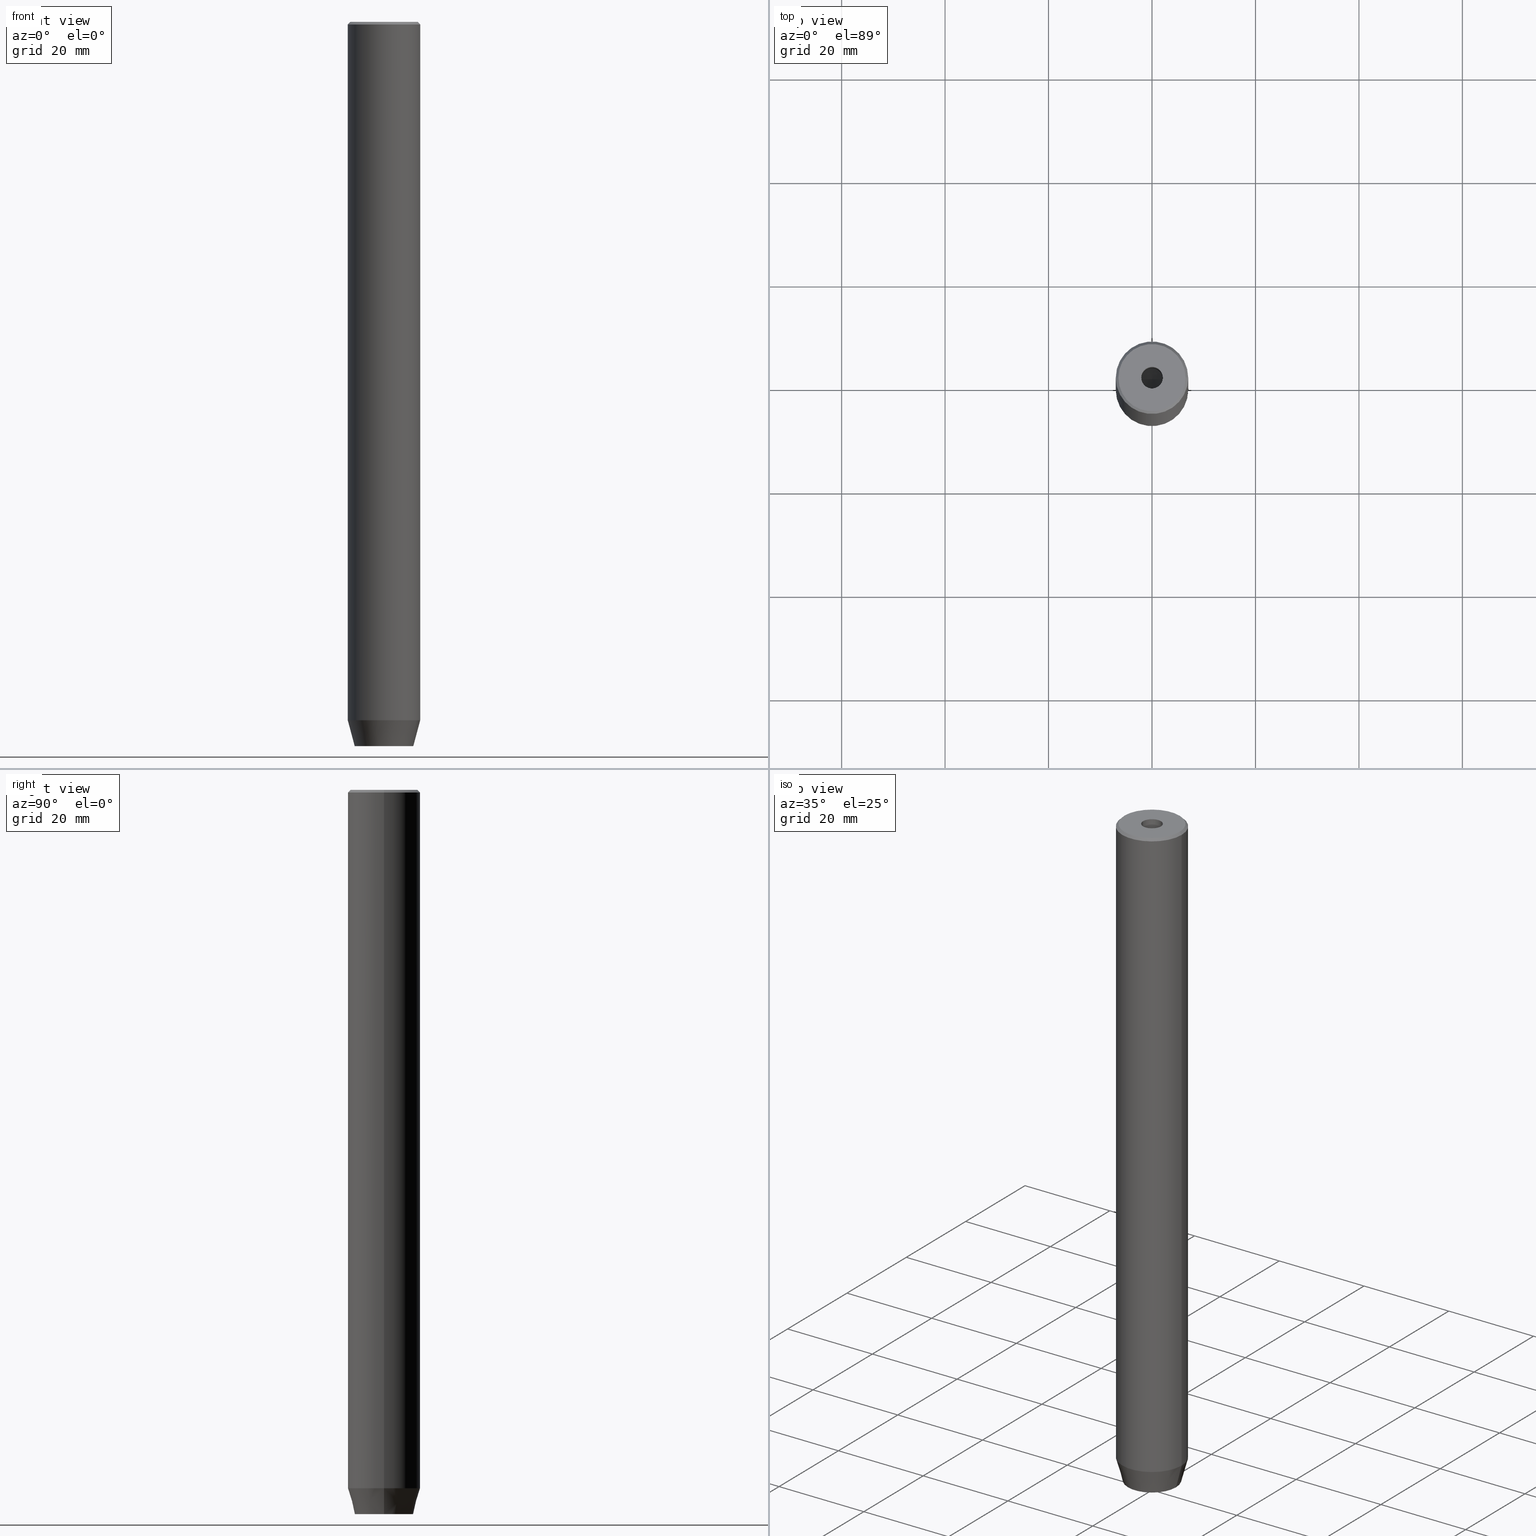
[diagram: canonical four-view strip — front | top / right | iso, engineering-drawing reading convention]
A machine part, canonical four-view strip (front | top / right | iso — engineering-drawing reading convention). The complete STEP part file that produces these views, byte-faithful:
ISO-10303-21;
HEADER;
FILE_DESCRIPTION (( 'STEP AP203' ),
    '1' );
FILE_NAME ('f5e4.STEP',
    '2024-01-02T20:41:37',
    ( '' ),
    ( '' ),
    'SwSTEP 2.0',
    'SolidWorks 2019',
    '' );
FILE_SCHEMA (( 'CONFIG_CONTROL_DESIGN' ));
ENDSEC;

DATA;
#1 = CONICAL_SURFACE ( 'NONE', #375, 6.500000000000005329, 0.7853981633974517207 ) ;
#2 = DIRECTION ( 'NONE',  ( -0.000000000000000000, -0.000000000000000000, 1.000000000000000000 ) ) ;
#3 = CARTESIAN_POINT ( 'NONE',  ( 0.000000000000000000, 0.000000000000000000, 0.000000000000000000 ) ) ;
#4 = ADVANCED_FACE ( 'NONE', ( #519, #208 ), #248, .T. ) ;
#5 = LINE ( 'NONE', #493, #250 ) ;
#6 = DIRECTION ( 'NONE',  ( 0.000000000000000000, 1.000000000000000000, 0.000000000000000000 ) ) ;
#7 = LINE ( 'NONE', #308, #79 ) ;
#8 = DIRECTION ( 'NONE',  ( 1.000000000000000000, 0.000000000000000000, 0.000000000000000000 ) ) ;
#9 = CARTESIAN_POINT ( 'NONE',  ( 0.000000000000000000, 5.660254037844382857, -140.0000000000000000 ) ) ;
#10 = DIRECTION ( 'NONE',  ( 1.000000000000000000, 0.000000000000000000, 0.000000000000000000 ) ) ;
#11 = EDGE_LOOP ( 'NONE', ( #58, #111, #281 ) ) ;
#12 = EDGE_CURVE ( 'NONE', #223, #296, #436, .T. ) ;
#13 = CARTESIAN_POINT ( 'NONE',  ( -6.500000000000005329, 0.000000000000000000, 0.000000000000000000 ) ) ;
#14 = APPROVAL_PERSON_ORGANIZATION ( #42, #221, #584 ) ;
#15 = DIRECTION ( 'NONE',  ( 0.5000000000000001110, 0.8660254037844385966, -0.000000000000000000 ) ) ;
#16 = DIRECTION ( 'NONE',  ( -1.000000000000000000, 0.000000000000000000, 0.000000000000000000 ) ) ;
#17 = CARTESIAN_POINT ( 'NONE',  ( 1.250000000000000222, 2.165063509461096825, -137.2000000000000171 ) ) ;
#18 = EDGE_LOOP ( 'NONE', ( #529, #195, #353, #64 ) ) ;
#19 = FACE_OUTER_BOUND ( 'NONE', #18, .T. ) ;
#20 = EDGE_CURVE ( 'NONE', #296, #315, #202, .T. ) ;
#21 = ORIENTED_EDGE ( 'NONE', *, *, #570, .T. ) ;
#22 = DIRECTION ( 'NONE',  ( -0.8660254037844385966, -0.5000000000000001110, 0.000000000000000000 ) ) ;
#23 = LINE ( 'NONE', #210, #479 ) ;
#24 = APPROVAL ( #166, 'NEUR�EN�' ) ;
#25 = CONICAL_SURFACE ( 'NONE', #69, 2.099999999999996980, 1.029744258676652535 ) ;
#26 = DIRECTION ( 'NONE',  ( 0.8660254037844385966, 0.4999999999999999445, 0.000000000000000000 ) ) ;
#27 = EDGE_CURVE ( 'NONE', #405, #237, #23, .T. ) ;
#28 = CARTESIAN_POINT ( 'NONE',  ( -2.500000000000000444, -1.443375672974064328, -140.0000000000000000 ) ) ;
#29 = CALENDAR_DATE ( 2024, 2, 1 ) ;
#30 = DIRECTION ( 'NONE',  ( -0.000000000000000000, -0.000000000000000000, 1.000000000000000000 ) ) ;
#31 = AXIS2_PLACEMENT_3D ( 'NONE', #302, #475, #397 ) ;
#32 = VECTOR ( 'NONE', #36, 1000.000000000000000 ) ;
#33 = CALENDAR_DATE ( 2024, 2, 1 ) ;
#34 = CARTESIAN_POINT ( 'NONE',  ( 7.000000000000000000, 0.000000000000000000, -0.4999999999999908962 ) ) ;
#35 = PERSON_AND_ORGANIZATION ( #513, #564 ) ;
#36 = DIRECTION ( 'NONE',  ( 0.8571673007021113344, 0.000000000000000000, 0.5150380749100558209 ) ) ;
#37 = EDGE_CURVE ( 'NONE', #312, #292, #553, .T. ) ;
#38 = EDGE_LOOP ( 'NONE', ( #21, #425, #372, #288 ) ) ;
#39 = CARTESIAN_POINT ( 'NONE',  ( 0.000000000000000000, 0.000000000000000000, -135.0000000000000000 ) ) ;
#40 = DIRECTION ( 'NONE',  ( -0.000000000000000000, -0.000000000000000000, 1.000000000000000000 ) ) ;
#41 = CYLINDRICAL_SURFACE ( 'NONE', #441, 7.000000000000000000 ) ;
#42 = PERSON_AND_ORGANIZATION ( #513, #564 ) ;
#43 = EDGE_CURVE ( 'NONE', #416, #220, #162, .T. ) ;
#44 = FACE_OUTER_BOUND ( 'NONE', #565, .T. ) ;
#45 = FACE_OUTER_BOUND ( 'NONE', #247, .T. ) ;
#46 = SECURITY_CLASSIFICATION ( '', '', #260 ) ;
#47 = DIRECTION ( 'NONE',  ( -0.000000000000000000, -0.000000000000000000, -1.000000000000000000 ) ) ;
#48 = AXIS2_PLACEMENT_3D ( 'NONE', #103, #16, #55 ) ;
#49 = CARTESIAN_POINT ( 'NONE',  ( 0.000000000000000000, 0.000000000000000000, -1.990051048614449116E-16 ) ) ;
#50 = VECTOR ( 'NONE', #52, 1000.000000000000000 ) ;
#51 = ORIENTED_EDGE ( 'NONE', *, *, #566, .T. ) ;
#52 = DIRECTION ( 'NONE',  ( 0.8660254037844385966, 0.5000000000000001110, 0.000000000000000000 ) ) ;
#53 = LINE ( 'NONE', #500, #159 ) ;
#54 = ADVANCED_FACE ( 'NONE', ( #332 ), #328, .F. ) ;
#55 = DIRECTION ( 'NONE',  ( 0.000000000000000000, 0.000000000000000000, 1.000000000000000000 ) ) ;
#56 = PLANE ( 'NONE',  #225 ) ;
#57 = CARTESIAN_POINT ( 'NONE',  ( 2.099999999999996980, 0.000000000000000000, -15.00000000000000000 ) ) ;
#58 = ORIENTED_EDGE ( 'NONE', *, *, #83, .F. ) ;
#59 = CIRCLE ( 'NONE', #369, 7.000000000000000000 ) ;
#60 = ORIENTED_EDGE ( 'NONE', *, *, #414, .T. ) ;
#61 = CARTESIAN_POINT ( 'NONE',  ( -5.660254037844382857, 7.752169791919238770E-16, -140.0000000000000000 ) ) ;
#62 = ADVANCED_FACE ( 'NONE', ( #283 ), #56, .F. ) ;
#63 = ORIENTED_EDGE ( 'NONE', *, *, #20, .F. ) ;
#64 = ORIENTED_EDGE ( 'NONE', *, *, #266, .T. ) ;
#65 = PLANE ( 'NONE',  #544 ) ;
#66 = VECTOR ( 'NONE', #427, 1000.000000000000114 ) ;
#67 = AXIS2_PLACEMENT_3D ( 'NONE', #226, #580, #449 ) ;
#68 = CC_DESIGN_APPROVAL ( #221, ( #46 ) ) ;
#69 = AXIS2_PLACEMENT_3D ( 'NONE', #390, #30, #347 ) ;
#70 =( LENGTH_UNIT ( ) NAMED_UNIT ( * ) SI_UNIT ( .MILLI., .METRE. ) );
#71 = AXIS2_PLACEMENT_3D ( 'NONE', #578, #178, #272 ) ;
#72 = ORIENTED_EDGE ( 'NONE', *, *, #504, .T. ) ;
#73 = LINE ( 'NONE', #478, #32 ) ;
#74 = VERTEX_POINT ( 'NONE', #28 ) ;
#75 = EDGE_CURVE ( 'NONE', #292, #264, #474, .T. ) ;
#76 = APPLICATION_PROTOCOL_DEFINITION ( 'international standard', 'config_control_design', 1994, #122 ) ;
#77 = AXIS2_PLACEMENT_3D ( 'NONE', #39, #238, #10 ) ;
#78 = DIRECTION ( 'NONE',  ( 0.8660254037844387076, -0.4999999999999998890, 0.000000000000000000 ) ) ;
#79 = VECTOR ( 'NONE', #47, 1000.000000000000000 ) ;
#80 = CC_DESIGN_SECURITY_CLASSIFICATION ( #46, ( #355 ) ) ;
#81 = EDGE_LOOP ( 'NONE', ( #256, #437, #233 ) ) ;
#82 = PERSON_AND_ORGANIZATION_ROLE ( 'design_supplier' ) ;
#83 = EDGE_CURVE ( 'NONE', #212, #416, #5, .T. ) ;
#84 = CARTESIAN_POINT ( 'NONE',  ( 1.249999999999999778, -2.165063509461096380, -137.2000000000000171 ) ) ;
#85 = VECTOR ( 'NONE', #408, 1000.000000000000114 ) ;
#86 = CARTESIAN_POINT ( 'NONE',  ( 0.000000000000000000, 0.000000000000000000, -15.00000000000000000 ) ) ;
#87 = ORIENTED_EDGE ( 'NONE', *, *, #139, .F. ) ;
#88 = CC_DESIGN_DATE_AND_TIME_ASSIGNMENT ( #374, #277, ( #46 ) ) ;
#89 = DIRECTION ( 'NONE',  ( 0.5000000000000000000, -0.8660254037844387076, 0.000000000000000000 ) ) ;
#90 = AXIS2_PLACEMENT_3D ( 'NONE', #9, #379, #382 ) ;
#91 = DIRECTION ( 'NONE',  ( 1.000000000000000000, 0.000000000000000000, 0.000000000000000000 ) ) ;
#92 = AXIS2_PLACEMENT_3D ( 'NONE', #362, #313, #583 ) ;
#93 = ORIENTED_EDGE ( 'NONE', *, *, #155, .F. ) ;
#94 = EDGE_CURVE ( 'NONE', #396, #74, #7, .T. ) ;
#95 = LINE ( 'NONE', #276, #481 ) ;
#96 = ORIENTED_EDGE ( 'NONE', *, *, #558, .T. ) ;
#97 = DIRECTION ( 'NONE',  ( -1.000000000000000000, 0.000000000000000000, 0.000000000000000000 ) ) ;
#98 = EDGE_LOOP ( 'NONE', ( #232, #411, #135, #365 ) ) ;
#99 = ORIENTED_EDGE ( 'NONE', *, *, #155, .T. ) ;
#100 = CYLINDRICAL_SURFACE ( 'NONE', #307, 2.099999999999997868 ) ;
#101 = DIRECTION ( 'NONE',  ( -0.000000000000000000, -0.000000000000000000, 1.000000000000000000 ) ) ;
#102 = ORIENTED_EDGE ( 'NONE', *, *, #354, .F. ) ;
#103 = CARTESIAN_POINT ( 'NONE',  ( -2.500000000000000444, 0.000000000000000000, -137.2000000000000171 ) ) ;
#104 = LINE ( 'NONE', #450, #85 ) ;
#105 = EDGE_CURVE ( 'NONE', #363, #158, #541, .T. ) ;
#106 = DIRECTION ( 'NONE',  ( -0.5000000000000001110, 0.8660254037844385966, 0.000000000000000000 ) ) ;
#107 = ORIENTED_EDGE ( 'NONE', *, *, #229, .T. ) ;
#108 = ADVANCED_FACE ( 'NONE', ( #370 ), #268, .T. ) ;
#109 = CARTESIAN_POINT ( 'NONE',  ( 0.000000000000000000, 0.000000000000000000, -135.0000000000000000 ) ) ;
#110 = AXIS2_PLACEMENT_3D ( 'NONE', #360, #227, #78 ) ;
#111 = ORIENTED_EDGE ( 'NONE', *, *, #338, .T. ) ;
#112 = LINE ( 'NONE', #147, #168 ) ;
#113 = CARTESIAN_POINT ( 'NONE',  ( 2.500000000000000000, -1.443375672974064106, -137.2000000000000171 ) ) ;
#114 = DIRECTION ( 'NONE',  ( -0.000000000000000000, -0.000000000000000000, 1.000000000000000000 ) ) ;
#115 = LOCAL_TIME ( 21, 41, 37.00000000000000000, #216 ) ;
#116 = DIRECTION ( 'NONE',  ( -0.000000000000000000, -0.000000000000000000, 1.000000000000000000 ) ) ;
#117 = EDGE_CURVE ( 'NONE', #495, #396, #95, .T. ) ;
#118 = CARTESIAN_POINT ( 'NONE',  ( 1.249999999999999778, -2.165063509461096380, -140.0000000000000000 ) ) ;
#119 = ORIENTED_EDGE ( 'NONE', *, *, #257, .F. ) ;
#120 = MECHANICAL_CONTEXT ( 'NONE', #274, 'mechanical' ) ;
#121 = LINE ( 'NONE', #84, #487 ) ;
#122 = APPLICATION_CONTEXT ( 'configuration controlled 3d designs of mechanical parts and assemblies' ) ;
#123 = CARTESIAN_POINT ( 'NONE',  ( -2.500000000000000444, -1.443375672974064328, -137.2000000000000171 ) ) ;
#124 = AXIS2_PLACEMENT_3D ( 'NONE', #241, #463, #511 ) ;
#125 = EDGE_LOOP ( 'NONE', ( #399, #484, #228, #577 ) ) ;
#126 = ADVANCED_FACE ( 'NONE', ( #454 ), #498, .T. ) ;
#127 = PERSON_AND_ORGANIZATION ( #513, #564 ) ;
#128 = FACE_OUTER_BOUND ( 'NONE', #460, .T. ) ;
#129 = VECTOR ( 'NONE', #350, 1000.000000000000000 ) ;
#130 = CC_DESIGN_PERSON_AND_ORGANIZATION_ASSIGNMENT ( #35, #576, ( #46 ) ) ;
#131 = DIRECTION ( 'NONE',  ( 1.000000000000000000, 0.000000000000000000, 0.000000000000000000 ) ) ;
#132 = ORIENTED_EDGE ( 'NONE', *, *, #213, .F. ) ;
#133 = ORIENTED_EDGE ( 'NONE', *, *, #229, .F. ) ;
#134 = DIRECTION ( 'NONE',  ( -0.000000000000000000, -0.000000000000000000, 1.000000000000000000 ) ) ;
#135 = ORIENTED_EDGE ( 'NONE', *, *, #570, .F. ) ;
#136 = LINE ( 'NONE', #352, #169 ) ;
#137 = DATE_AND_TIME ( #192, #509 ) ;
#138 = FACE_OUTER_BOUND ( 'NONE', #259, .T. ) ;
#139 = EDGE_CURVE ( 'NONE', #190, #174, #398, .T. ) ;
#140 = DIRECTION ( 'NONE',  ( 0.2588190451025211836, 0.000000000000000000, 0.9659258262890680902 ) ) ;
#141 = EDGE_LOOP ( 'NONE', ( #383, #87 ) ) ;
#142 = CARTESIAN_POINT ( 'NONE',  ( 0.000000000000000000, 0.000000000000000000, 0.000000000000000000 ) ) ;
#143 = CARTESIAN_POINT ( 'NONE',  ( -2.500000000000000444, 0.000000000000000000, -140.0000000000000000 ) ) ;
#144 = PRODUCT ( 'f5e4', 'f5e4', '', ( #120 ) ) ;
#145 = VECTOR ( 'NONE', #184, 1000.000000000000000 ) ;
#146 = ADVANCED_FACE ( 'NONE', ( #537 ), #538, .F. ) ;
#147 = CARTESIAN_POINT ( 'NONE',  ( 1.250000000000000222, 2.165063509461096825, -140.0000000000000000 ) ) ;
#148 = FACE_BOUND ( 'NONE', #141, .T. ) ;
#149 = ADVANCED_BREP_SHAPE_REPRESENTATION ( 'f5e4', ( #530, #31 ), #326 ) ;
#150 = VECTOR ( 'NONE', #331, 1000.000000000000000 ) ;
#151 = CARTESIAN_POINT ( 'NONE',  ( 0.000000000000000000, 0.000000000000000000, 0.000000000000000000 ) ) ;
#152 = PLANE ( 'NONE',  #48 ) ;
#153 = DIRECTION ( 'NONE',  ( -0.000000000000000000, -0.000000000000000000, 1.000000000000000000 ) ) ;
#154 = CARTESIAN_POINT ( 'NONE',  ( 0.000000000000000000, 0.000000000000000000, 0.000000000000000000 ) ) ;
#155 = EDGE_CURVE ( 'NONE', #74, #447, #230, .T. ) ;
#156 = LINE ( 'NONE', #518, #339 ) ;
#157 = DIRECTION ( 'NONE',  ( 1.000000000000000000, 0.000000000000000000, 0.000000000000000000 ) ) ;
#158 = VERTEX_POINT ( 'NONE', #316 ) ;
#159 = VECTOR ( 'NONE', #6, 1000.000000000000000 ) ;
#160 = EDGE_CURVE ( 'NONE', #278, #363, #470, .T. ) ;
#161 = APPROVAL_STATUS ( 'not_yet_approved' ) ;
#162 = CIRCLE ( 'NONE', #189, 2.099999999999996980 ) ;
#163 = ORIENTED_EDGE ( 'NONE', *, *, #94, .T. ) ;
#164 = AXIS2_PLACEMENT_3D ( 'NONE', #154, #563, #157 ) ;
#165 = LINE ( 'NONE', #118, #244 ) ;
#166 = APPROVAL_STATUS ( 'not_yet_approved' ) ;
#167 = ORIENTED_EDGE ( 'NONE', *, *, #451, .F. ) ;
#168 = VECTOR ( 'NONE', #512, 1000.000000000000000 ) ;
#169 = VECTOR ( 'NONE', #528, 1000.000000000000000 ) ;
#170 = COORDINATED_UNIVERSAL_TIME_OFFSET ( 1, 0, .AHEAD. ) ;
#171 = ADVANCED_FACE ( 'NONE', ( #262 ), #100, .F. ) ;
#172 = ORIENTED_EDGE ( 'NONE', *, *, #242, .T. ) ;
#173 = APPROVAL_DATE_TIME ( #258, #24 ) ;
#174 = VERTEX_POINT ( 'NONE', #458 ) ;
#175 = CARTESIAN_POINT ( 'NONE',  ( 2.500000000000000000, 1.443375672974064328, -137.2000000000000171 ) ) ;
#176 = ORIENTED_EDGE ( 'NONE', *, *, #387, .T. ) ;
#177 = COORDINATED_UNIVERSAL_TIME_OFFSET ( 1, 0, .AHEAD. ) ;
#178 = DIRECTION ( 'NONE',  ( -0.000000000000000000, -0.000000000000000000, 1.000000000000000000 ) ) ;
#179 = APPROVAL_PERSON_ORGANIZATION ( #127, #480, #343 ) ;
#180 = EDGE_LOOP ( 'NONE', ( #582, #107, #403, #368 ) ) ;
#181 = DIRECTION ( 'NONE',  ( 1.000000000000000000, 0.000000000000000000, 0.000000000000000000 ) ) ;
#182 = PLANE ( 'NONE',  #110 ) ;
#183 = ORIENTED_EDGE ( 'NONE', *, *, #376, .F. ) ;
#184 = DIRECTION ( 'NONE',  ( 0.000000000000000000, 1.000000000000000000, 0.000000000000000000 ) ) ;
#185 = COORDINATED_UNIVERSAL_TIME_OFFSET ( 1, 0, .AHEAD. ) ;
#186 = ADVANCED_FACE ( 'NONE', ( #535 ), #473, .T. ) ;
#187 = EDGE_LOOP ( 'NONE', ( #172, #96, #322, #572, #231, #310 ) ) ;
#188 = DIRECTION ( 'NONE',  ( -0.000000000000000000, -0.000000000000000000, 1.000000000000000000 ) ) ;
#189 = AXIS2_PLACEMENT_3D ( 'NONE', #521, #114, #461 ) ;
#190 = VERTEX_POINT ( 'NONE', #286 ) ;
#191 = CARTESIAN_POINT ( 'NONE',  ( 0.000000000000000000, 0.000000000000000000, -140.0000000000000000 ) ) ;
#192 = CALENDAR_DATE ( 2024, 2, 1 ) ;
#193 = ORIENTED_EDGE ( 'NONE', *, *, #252, .F. ) ;
#194 = DIRECTION ( 'NONE',  ( 1.000000000000000000, 0.000000000000000000, 0.000000000000000000 ) ) ;
#195 = ORIENTED_EDGE ( 'NONE', *, *, #27, .F. ) ;
#196 = DIRECTION ( 'NONE',  ( -0.8571673007021113344, 1.049727191138617463E-16, 0.5150380749100558209 ) ) ;
#197 = CARTESIAN_POINT ( 'NONE',  ( -7.000000000000000000, 8.572527594031473190E-16, -135.0000000000000000 ) ) ;
#198 = CC_DESIGN_PERSON_AND_ORGANIZATION_ASSIGNMENT ( #217, #255, ( #520 ) ) ;
#199 = DIRECTION ( 'NONE',  ( 1.000000000000000000, 0.000000000000000000, 0.000000000000000000 ) ) ;
#200 = ORIENTED_EDGE ( 'NONE', *, *, #284, .F. ) ;
#201 = VECTOR ( 'NONE', #206, 1000.000000000000000 ) ;
#202 = LINE ( 'NONE', #251, #66 ) ;
#203 = CARTESIAN_POINT ( 'NONE',  ( -2.099999999999997868, 2.571758278209438999E-16, 0.000000000000000000 ) ) ;
#204 = AXIS2_PLACEMENT_3D ( 'NONE', #440, #89, #26 ) ;
#205 = DIRECTION ( 'NONE',  ( -0.8660254037844385966, 0.5000000000000001110, 0.000000000000000000 ) ) ;
#206 = DIRECTION ( 'NONE',  ( 0.8660254037844385966, -0.5000000000000001110, 0.000000000000000000 ) ) ;
#207 = ADVANCED_FACE ( 'NONE', ( #19 ), #65, .F. ) ;
#208 = FACE_OUTER_BOUND ( 'NONE', #393, .T. ) ;
#209 = CIRCLE ( 'NONE', #317, 2.099999999999996980 ) ;
#210 = CARTESIAN_POINT ( 'NONE',  ( -1.084202172485504434E-16, 2.886751345948129543, -137.2000000000000171 ) ) ;
#211 = CARTESIAN_POINT ( 'NONE',  ( 0.000000000000000000, 0.000000000000000000, -135.0000000000000000 ) ) ;
#212 = VERTEX_POINT ( 'NONE', #508 ) ;
#213 = EDGE_CURVE ( 'NONE', #237, #524, #112, .T. ) ;
#214 = ORIENTED_EDGE ( 'NONE', *, *, #94, .F. ) ;
#215 = CARTESIAN_POINT ( 'NONE',  ( 2.500000000000000000, -1.443375672974064106, -137.2000000000000171 ) ) ;
#216 = COORDINATED_UNIVERSAL_TIME_OFFSET ( 1, 0, .AHEAD. ) ;
#217 = PERSON_AND_ORGANIZATION ( #513, #564 ) ;
#218 = ORIENTED_EDGE ( 'NONE', *, *, #579, .F. ) ;
#219 = PERSON_AND_ORGANIZATION ( #513, #564 ) ;
#220 = VERTEX_POINT ( 'NONE', #57 ) ;
#221 = APPROVAL ( #324, 'NEUR�EN�' ) ;
#222 = CARTESIAN_POINT ( 'NONE',  ( 0.000000000000000000, 0.000000000000000000, -0.4999999999999908962 ) ) ;
#223 = VERTEX_POINT ( 'NONE', #13 ) ;
#224 = CARTESIAN_POINT ( 'NONE',  ( 0.000000000000000000, 0.000000000000000000, -140.0000000000000000 ) ) ;
#225 = AXIS2_PLACEMENT_3D ( 'NONE', #420, #15, #205 ) ;
#226 = CARTESIAN_POINT ( 'NONE',  ( 0.000000000000000000, 0.000000000000000000, -137.2000000000000171 ) ) ;
#227 = DIRECTION ( 'NONE',  ( -0.4999999999999998890, -0.8660254037844387076, 0.000000000000000000 ) ) ;
#228 = ORIENTED_EDGE ( 'NONE', *, *, #558, .F. ) ;
#229 = EDGE_CURVE ( 'NONE', #416, #190, #282, .T. ) ;
#230 = LINE ( 'NONE', #143, #145 ) ;
#231 = ORIENTED_EDGE ( 'NONE', *, *, #117, .T. ) ;
#232 = ORIENTED_EDGE ( 'NONE', *, *, #395, .T. ) ;
#233 = ORIENTED_EDGE ( 'NONE', *, *, #43, .T. ) ;
#234 = AXIS2_PLACEMENT_3D ( 'NONE', #547, #40, #91 ) ;
#235 = ADVANCED_FACE ( 'NONE', ( #557 ), #152, .F. ) ;
#236 = DIRECTION ( 'NONE',  ( 1.000000000000000000, 0.000000000000000000, 0.000000000000000000 ) ) ;
#237 = VERTEX_POINT ( 'NONE', #240 ) ;
#238 = DIRECTION ( 'NONE',  ( -0.000000000000000000, -0.000000000000000000, 1.000000000000000000 ) ) ;
#239 = EDGE_LOOP ( 'NONE', ( #63, #348, #499, #413 ) ) ;
#240 = CARTESIAN_POINT ( 'NONE',  ( 0.000000000000000000, 2.886751345948129099, -140.0000000000000000 ) ) ;
#241 = CARTESIAN_POINT ( 'NONE',  ( 2.500000000000000000, 0.000000000000000000, -137.2000000000000171 ) ) ;
#242 = EDGE_CURVE ( 'NONE', #443, #405, #424, .T. ) ;
#243 = CARTESIAN_POINT ( 'NONE',  ( 0.000000000000000000, 0.000000000000000000, -135.0000000000000000 ) ) ;
#244 = VECTOR ( 'NONE', #297, 999.9999999999998863 ) ;
#245 = ORIENTED_EDGE ( 'NONE', *, *, #12, .T. ) ;
#246 = DIRECTION ( 'NONE',  ( -0.000000000000000000, -0.000000000000000000, 1.000000000000000000 ) ) ;
#247 = EDGE_LOOP ( 'NONE', ( #545, #357, #102, #510 ) ) ;
#248 = PLANE ( 'NONE',  #90 ) ;
#249 = ORIENTED_EDGE ( 'NONE', *, *, #160, .F. ) ;
#250 = VECTOR ( 'NONE', #196, 1000.000000000000000 ) ;
#251 = CARTESIAN_POINT ( 'NONE',  ( 6.500000000000005329, 7.960204194457803365E-16, 0.000000000000000000 ) ) ;
#252 = EDGE_CURVE ( 'NONE', #585, #315, #384, .T. ) ;
#253 = LINE ( 'NONE', #428, #410 ) ;
#254 = LOCAL_TIME ( 21, 41, 37.00000000000000000, #177 ) ;
#255 = PERSON_AND_ORGANIZATION_ROLE ( 'creator' ) ;
#256 = ORIENTED_EDGE ( 'NONE', *, *, #338, .F. ) ;
#257 = EDGE_CURVE ( 'NONE', #465, #158, #430, .T. ) ;
#258 = DATE_AND_TIME ( #349, #516 ) ;
#259 = EDGE_LOOP ( 'NONE', ( #200, #490, #304, #556 ) ) ;
#260 = SECURITY_CLASSIFICATION_LEVEL ( 'unclassified' ) ;
#261 = EDGE_LOOP ( 'NONE', ( #401, #345, #506, #385 ) ) ;
#262 = FACE_OUTER_BOUND ( 'NONE', #587, .T. ) ;
#263 = CARTESIAN_POINT ( 'NONE',  ( 0.000000000000000000, 0.000000000000000000, -15.00000000000000000 ) ) ;
#264 = VERTEX_POINT ( 'NONE', #561 ) ;
#265 = DIRECTION ( 'NONE',  ( -0.8660254037844387076, -0.5000000000000001110, 0.000000000000000000 ) ) ;
#266 = EDGE_CURVE ( 'NONE', #443, #447, #515, .T. ) ;
#267 = CIRCLE ( 'NONE', #164, 6.500000000000005329 ) ;
#268 = CYLINDRICAL_SURFACE ( 'NONE', #386, 7.000000000000000000 ) ;
#269 = ORIENTED_EDGE ( 'NONE', *, *, #20, .T. ) ;
#270 = CARTESIAN_POINT ( 'NONE',  ( 0.000000000000000000, -2.886751345948128211, -137.2000000000000171 ) ) ;
#271 = ORIENTED_EDGE ( 'NONE', *, *, #497, .F. ) ;
#272 = DIRECTION ( 'NONE',  ( 1.000000000000000000, 0.000000000000000000, 0.000000000000000000 ) ) ;
#273 = VERTEX_POINT ( 'NONE', #419 ) ;
#274 = APPLICATION_CONTEXT ( 'configuration controlled 3d designs of mechanical parts and assemblies' ) ;
#275 = ADVANCED_FACE ( 'NONE', ( #422 ), #555, .T. ) ;
#276 = CARTESIAN_POINT ( 'NONE',  ( -1.249999999999999556, -2.165063509461096825, -137.2000000000000171 ) ) ;
#277 = DATE_TIME_ROLE ( 'classification_date' ) ;
#278 = VERTEX_POINT ( 'NONE', #61 ) ;
#279 = DIRECTION ( 'NONE',  ( 1.000000000000000000, 0.000000000000000000, 0.000000000000000000 ) ) ;
#280 = CARTESIAN_POINT ( 'NONE',  ( 2.500000000000000000, 0.000000000000000000, -140.0000000000000000 ) ) ;
#281 = ORIENTED_EDGE ( 'NONE', *, *, #579, .T. ) ;
#282 = LINE ( 'NONE', #203, #531 ) ;
#283 = FACE_OUTER_BOUND ( 'NONE', #125, .T. ) ;
#284 = EDGE_CURVE ( 'NONE', #465, #585, #156, .T. ) ;
#285 = UNCERTAINTY_MEASURE_WITH_UNIT (LENGTH_MEASURE( 1.000000000000000082E-05 ), #70, 'distance_accuracy_value', 'NONE');
#286 = CARTESIAN_POINT ( 'NONE',  ( -2.099999999999998757, 2.571758278209439985E-16, -1.990051048614449116E-16 ) ) ;
#287 = AXIS2_PLACEMENT_3D ( 'NONE', #211, #522, #329 ) ;
#288 = ORIENTED_EDGE ( 'NONE', *, *, #294, .F. ) ;
#289 = DIRECTION ( 'NONE',  ( -0.000000000000000000, -0.000000000000000000, 1.000000000000000000 ) ) ;
#290 = AXIS2_PLACEMENT_3D ( 'NONE', #243, #335, #8 ) ;
#291 = ORIENTED_EDGE ( 'NONE', *, *, #266, .F. ) ;
#292 = VERTEX_POINT ( 'NONE', #113 ) ;
#293 = CARTESIAN_POINT ( 'NONE',  ( 0.000000000000000000, 0.000000000000000000, -0.4999999999999908962 ) ) ;
#294 = EDGE_CURVE ( 'NONE', #158, #315, #253, .T. ) ;
#295 = COORDINATED_UNIVERSAL_TIME_OFFSET ( 1, 0, .AHEAD. ) ;
#296 = VERTEX_POINT ( 'NONE', #568 ) ;
#297 = DIRECTION ( 'NONE',  ( -0.8660254037844387076, -0.5000000000000001110, 0.000000000000000000 ) ) ;
#298 =( NAMED_UNIT ( * ) SI_UNIT ( $, .STERADIAN. ) SOLID_ANGLE_UNIT ( ) );
#299 = CARTESIAN_POINT ( 'NONE',  ( -1.250000000000000444, 2.165063509461097269, -140.0000000000000000 ) ) ;
#300 = ORIENTED_EDGE ( 'NONE', *, *, #536, .F. ) ;
#301 = EDGE_CURVE ( 'NONE', #264, #273, #165, .T. ) ;
#302 = CARTESIAN_POINT ( 'NONE',  ( 0.000000000000000000, 0.000000000000000000, 0.000000000000000000 ) ) ;
#303 = FACE_OUTER_BOUND ( 'NONE', #180, .T. ) ;
#304 = ORIENTED_EDGE ( 'NONE', *, *, #294, .T. ) ;
#305 = APPROVAL_PERSON_ORGANIZATION ( #219, #24, #392 ) ;
#306 = PERSON_AND_ORGANIZATION_ROLE ( 'creator' ) ;
#307 = AXIS2_PLACEMENT_3D ( 'NONE', #445, #134, #279 ) ;
#308 = CARTESIAN_POINT ( 'NONE',  ( -2.500000000000000444, -1.443375672974064328, -137.2000000000000171 ) ) ;
#309 = ADVANCED_FACE ( 'NONE', ( #45 ), #311, .F. ) ;
#310 = ORIENTED_EDGE ( 'NONE', *, *, #497, .T. ) ;
#311 = PLANE ( 'NONE',  #204 ) ;
#312 = VERTEX_POINT ( 'NONE', #533 ) ;
#313 = DIRECTION ( 'NONE',  ( 0.000000000000000000, 0.000000000000000000, -1.000000000000000000 ) ) ;
#314 = APPROVAL_DATE_TIME ( #137, #221 ) ;
#315 = VERTEX_POINT ( 'NONE', #34 ) ;
#316 = CARTESIAN_POINT ( 'NONE',  ( 7.000000000000000000, 0.000000000000000000, -135.0000000000000000 ) ) ;
#317 = AXIS2_PLACEMENT_3D ( 'NONE', #263, #116, #131 ) ;
#318 = CARTESIAN_POINT ( 'NONE',  ( 0.000000000000000000, 0.000000000000000000, 0.000000000000000000 ) ) ;
#319 = LINE ( 'NONE', #371, #333 ) ;
#320 = CARTESIAN_POINT ( 'NONE',  ( 2.500000000000000000, 1.443375672974064328, -140.0000000000000000 ) ) ;
#321 = AXIS2_PLACEMENT_3D ( 'NONE', #151, #153, #562 ) ;
#322 = ORIENTED_EDGE ( 'NONE', *, *, #37, .T. ) ;
#323 = CIRCLE ( 'NONE', #471, 2.099999999999998757 ) ;
#324 = APPROVAL_STATUS ( 'not_yet_approved' ) ;
#325 = CARTESIAN_POINT ( 'NONE',  ( -2.500000000000000444, 1.443375672974064772, -137.2000000000000171 ) ) ;
#326 =( GEOMETRIC_REPRESENTATION_CONTEXT ( 3 ) GLOBAL_UNCERTAINTY_ASSIGNED_CONTEXT ( ( #285 ) ) GLOBAL_UNIT_ASSIGNED_CONTEXT ( ( #70, #532, #298 ) ) REPRESENTATION_CONTEXT ( 'NONE', 'WORKASPACE' ) );
#327 = CARTESIAN_POINT ( 'NONE',  ( -2.500000000000000444, 1.443375672974064772, -137.2000000000000171 ) ) ;
#328 = PLANE ( 'NONE',  #124 ) ;
#329 = DIRECTION ( 'NONE',  ( 1.000000000000000000, 0.000000000000000000, 0.000000000000000000 ) ) ;
#330 = EDGE_CURVE ( 'NONE', #312, #524, #448, .T. ) ;
#331 = DIRECTION ( 'NONE',  ( -0.000000000000000000, -0.000000000000000000, -1.000000000000000000 ) ) ;
#332 = FACE_OUTER_BOUND ( 'NONE', #261, .T. ) ;
#333 = VECTOR ( 'NONE', #552, 1000.000000000000114 ) ;
#334 = VECTOR ( 'NONE', #482, 1000.000000000000000 ) ;
#335 = DIRECTION ( 'NONE',  ( -0.000000000000000000, -0.000000000000000000, 1.000000000000000000 ) ) ;
#336 = ORIENTED_EDGE ( 'NONE', *, *, #105, .T. ) ;
#337 = LINE ( 'NONE', #17, #201 ) ;
#338 = EDGE_CURVE ( 'NONE', #212, #220, #73, .T. ) ;
#339 = VECTOR ( 'NONE', #246, 1000.000000000000000 ) ;
#340 = DIRECTION ( 'NONE',  ( -0.000000000000000000, -0.000000000000000000, -1.000000000000000000 ) ) ;
#341 = DIRECTION ( 'NONE',  ( -0.000000000000000000, -0.000000000000000000, 1.000000000000000000 ) ) ;
#342 = CLOSED_SHELL ( 'NONE', ( #407, #146, #472, #275, #108, #4, #439, #432, #514, #186, #207, #235, #381, #309, #54, #62, #126, #346, #171 ) ) ;
#343 = APPROVAL_ROLE ( '' ) ;
#344 = ORIENTED_EDGE ( 'NONE', *, *, #527, .F. ) ;
#345 = ORIENTED_EDGE ( 'NONE', *, *, #75, .F. ) ;
#346 = ADVANCED_FACE ( 'NONE', ( #491 ), #25, .F. ) ;
#347 = DIRECTION ( 'NONE',  ( 1.000000000000000000, 0.000000000000000000, 0.000000000000000000 ) ) ;
#348 = ORIENTED_EDGE ( 'NONE', *, *, #12, .F. ) ;
#349 = CALENDAR_DATE ( 2024, 2, 1 ) ;
#350 = DIRECTION ( 'NONE',  ( 0.8660254037844385966, 0.5000000000000001110, 0.000000000000000000 ) ) ;
#351 = PERSON_AND_ORGANIZATION ( #513, #564 ) ;
#352 = CARTESIAN_POINT ( 'NONE',  ( 0.000000000000000000, -2.886751345948128211, -137.2000000000000171 ) ) ;
#353 = ORIENTED_EDGE ( 'NONE', *, *, #242, .F. ) ;
#354 = EDGE_CURVE ( 'NONE', #292, #495, #121, .T. ) ;
#355 = PRODUCT_DEFINITION_FORMATION_WITH_SPECIFIED_SOURCE ( 'LIBOVOLN�', '', #144, .NOT_KNOWN. ) ;
#356 = CALENDAR_DATE ( 2024, 2, 1 ) ;
#357 = ORIENTED_EDGE ( 'NONE', *, *, #387, .F. ) ;
#358 = CC_DESIGN_PERSON_AND_ORGANIZATION_ASSIGNMENT ( #486, #82, ( #355 ) ) ;
#359 = ORIENTED_EDGE ( 'NONE', *, *, #117, .F. ) ;
#360 = CARTESIAN_POINT ( 'NONE',  ( -1.249999999999999556, -2.165063509461096825, -137.2000000000000171 ) ) ;
#361 = EDGE_LOOP ( 'NONE', ( #99, #291, #271, #163 ) ) ;
#362 = CARTESIAN_POINT ( 'NONE',  ( 0.000000000000000000, 0.000000000000000000, 0.000000000000000000 ) ) ;
#363 = VERTEX_POINT ( 'NONE', #438 ) ;
#364 = DIRECTION ( 'NONE',  ( -0.7071067811865500152, 0.000000000000000000, -0.7071067811865451302 ) ) ;
#365 = ORIENTED_EDGE ( 'NONE', *, *, #105, .F. ) ;
#366 = CARTESIAN_POINT ( 'NONE',  ( -2.500000000000000444, 1.443375672974064772, -140.0000000000000000 ) ) ;
#367 = EDGE_CURVE ( 'NONE', #315, #585, #59, .T. ) ;
#368 = ORIENTED_EDGE ( 'NONE', *, *, #414, .F. ) ;
#369 = AXIS2_PLACEMENT_3D ( 'NONE', #222, #571, #394 ) ;
#370 = FACE_OUTER_BOUND ( 'NONE', #38, .T. ) ;
#371 = CARTESIAN_POINT ( 'NONE',  ( -1.249999999999999556, -2.165063509461096825, -140.0000000000000000 ) ) ;
#372 = ORIENTED_EDGE ( 'NONE', *, *, #252, .T. ) ;
#373 = CARTESIAN_POINT ( 'NONE',  ( 0.000000000000000000, 0.000000000000000000, 0.000000000000000000 ) ) ;
#374 = DATE_AND_TIME ( #356, #254 ) ;
#375 = AXIS2_PLACEMENT_3D ( 'NONE', #318, #543, #97 ) ;
#376 = EDGE_CURVE ( 'NONE', #447, #237, #444, .T. ) ;
#377 = DIRECTION ( 'NONE',  ( 0.000000000000000000, -1.000000000000000000, 0.000000000000000000 ) ) ;
#378 = LINE ( 'NONE', #586, #492 ) ;
#379 = DIRECTION ( 'NONE',  ( 0.000000000000000000, 0.000000000000000000, -1.000000000000000000 ) ) ;
#380 = DIRECTION ( 'NONE',  ( -0.000000000000000000, -0.000000000000000000, 1.000000000000000000 ) ) ;
#381 = ADVANCED_FACE ( 'NONE', ( #128 ), #182, .F. ) ;
#382 = DIRECTION ( 'NONE',  ( -1.000000000000000000, 0.000000000000000000, -0.000000000000000000 ) ) ;
#383 = ORIENTED_EDGE ( 'NONE', *, *, #546, .F. ) ;
#384 = CIRCLE ( 'NONE', #421, 7.000000000000000000 ) ;
#385 = ORIENTED_EDGE ( 'NONE', *, *, #330, .T. ) ;
#386 = AXIS2_PLACEMENT_3D ( 'NONE', #373, #402, #236 ) ;
#387 = EDGE_CURVE ( 'NONE', #495, #273, #136, .T. ) ;
#388 = CC_DESIGN_APPROVAL ( #480, ( #520 ) ) ;
#389 = DATE_AND_TIME ( #29, #115 ) ;
#390 = CARTESIAN_POINT ( 'NONE',  ( 0.000000000000000000, 0.000000000000000000, -15.00000000000000000 ) ) ;
#391 = AXIS2_PLACEMENT_3D ( 'NONE', #224, #526, #476 ) ;
#392 = APPROVAL_ROLE ( '' ) ;
#393 = EDGE_LOOP ( 'NONE', ( #469, #249 ) ) ;
#394 = DIRECTION ( 'NONE',  ( 1.000000000000000000, 0.000000000000000000, 0.000000000000000000 ) ) ;
#395 = EDGE_CURVE ( 'NONE', #363, #278, #423, .T. ) ;
#396 = VERTEX_POINT ( 'NONE', #123 ) ;
#397 = DIRECTION ( 'NONE',  ( 1.000000000000000000, 0.000000000000000000, 0.000000000000000000 ) ) ;
#398 = CIRCLE ( 'NONE', #234, 2.099999999999998757 ) ;
#399 = ORIENTED_EDGE ( 'NONE', *, *, #213, .T. ) ;
#400 = CYLINDRICAL_SURFACE ( 'NONE', #71, 2.099999999999997868 ) ;
#401 = ORIENTED_EDGE ( 'NONE', *, *, #527, .T. ) ;
#402 = DIRECTION ( 'NONE',  ( -0.000000000000000000, -0.000000000000000000, 1.000000000000000000 ) ) ;
#403 = ORIENTED_EDGE ( 'NONE', *, *, #139, .T. ) ;
#404 = DIRECTION ( 'NONE',  ( 1.000000000000000000, 0.000000000000000000, 0.000000000000000000 ) ) ;
#405 = VERTEX_POINT ( 'NONE', #488 ) ;
#406 = DIRECTION ( 'NONE',  ( 0.000000000000000000, -1.000000000000000000, 0.000000000000000000 ) ) ;
#407 = ADVANCED_FACE ( 'NONE', ( #303 ), #400, .F. ) ;
#408 = DIRECTION ( 'NONE',  ( -0.2588190451025211836, 3.169619151431770488E-17, 0.9659258262890680902 ) ) ;
#409 = EDGE_LOOP ( 'NONE', ( #435, #269, #193, #300 ) ) ;
#410 = VECTOR ( 'NONE', #341, 1000.000000000000000 ) ;
#411 = ORIENTED_EDGE ( 'NONE', *, *, #451, .T. ) ;
#412 = CARTESIAN_POINT ( 'NONE',  ( -2.099999999999996980, 2.571758278209438013E-16, -15.00000000000000000 ) ) ;
#413 = ORIENTED_EDGE ( 'NONE', *, *, #367, .F. ) ;
#414 = EDGE_CURVE ( 'NONE', #220, #174, #453, .T. ) ;
#415 = DIRECTION ( 'NONE',  ( 0.000000000000000000, 0.000000000000000000, -1.000000000000000000 ) ) ;
#416 = VERTEX_POINT ( 'NONE', #412 ) ;
#417 = VECTOR ( 'NONE', #377, 1000.000000000000000 ) ;
#418 = CONICAL_SURFACE ( 'NONE', #77, 7.000000000000000000, 0.2617993877991499074 ) ;
#419 = CARTESIAN_POINT ( 'NONE',  ( 0.000000000000000000, -2.886751345948128211, -140.0000000000000000 ) ) ;
#420 = CARTESIAN_POINT ( 'NONE',  ( 1.250000000000000222, 2.165063509461096825, -137.2000000000000171 ) ) ;
#421 = AXIS2_PLACEMENT_3D ( 'NONE', #293, #415, #559 ) ;
#422 = FACE_OUTER_BOUND ( 'NONE', #98, .T. ) ;
#423 = CIRCLE ( 'NONE', #391, 5.660254037844382857 ) ;
#424 = LINE ( 'NONE', #464, #50 ) ;
#425 = ORIENTED_EDGE ( 'NONE', *, *, #284, .T. ) ;
#426 = CARTESIAN_POINT ( 'NONE',  ( -1.250000000000000444, 2.165063509461097269, -137.2000000000000171 ) ) ;
#427 = DIRECTION ( 'NONE',  ( 0.7071067811865500152, 8.659560562354962440E-17, -0.7071067811865451302 ) ) ;
#428 = CARTESIAN_POINT ( 'NONE',  ( 7.000000000000000000, 0.000000000000000000, 0.000000000000000000 ) ) ;
#429 = LOCAL_TIME ( 21, 41, 37.00000000000000000, #295 ) ;
#430 = CIRCLE ( 'NONE', #290, 7.000000000000000000 ) ;
#431 = VECTOR ( 'NONE', #101, 1000.000000000000000 ) ;
#432 = ADVANCED_FACE ( 'NONE', ( #138 ), #41, .T. ) ;
#433 = DESIGN_CONTEXT ( 'detailed design', #122, 'design' ) ;
#434 = PERSON_AND_ORGANIZATION_ROLE ( 'design_owner' ) ;
#435 = ORIENTED_EDGE ( 'NONE', *, *, #566, .F. ) ;
#436 = CIRCLE ( 'NONE', #321, 6.500000000000005329 ) ;
#437 = ORIENTED_EDGE ( 'NONE', *, *, #83, .T. ) ;
#438 = CARTESIAN_POINT ( 'NONE',  ( 5.660254037844382857, 0.000000000000000000, -140.0000000000000000 ) ) ;
#439 = ADVANCED_FACE ( 'NONE', ( #148, #44 ), #462, .T. ) ;
#440 = CARTESIAN_POINT ( 'NONE',  ( 1.249999999999999778, -2.165063509461096380, -137.2000000000000171 ) ) ;
#441 = AXIS2_PLACEMENT_3D ( 'NONE', #3, #188, #194 ) ;
#442 = APPLICATION_PROTOCOL_DEFINITION ( 'international standard', 'config_control_design', 1994, #274 ) ;
#443 = VERTEX_POINT ( 'NONE', #325 ) ;
#444 = LINE ( 'NONE', #299, #129 ) ;
#445 = CARTESIAN_POINT ( 'NONE',  ( 0.000000000000000000, 0.000000000000000000, 0.000000000000000000 ) ) ;
#446 = CARTESIAN_POINT ( 'NONE',  ( -7.000000000000000000, 8.572527594031473190E-16, -0.4999999999999908962 ) ) ;
#447 = VERTEX_POINT ( 'NONE', #366 ) ;
#448 = LINE ( 'NONE', #175, #517 ) ;
#449 = DIRECTION ( 'NONE',  ( -1.000000000000000000, 0.000000000000000000, -0.000000000000000000 ) ) ;
#450 = CARTESIAN_POINT ( 'NONE',  ( -7.000000000000000000, 8.572527594031473190E-16, -135.0000000000000000 ) ) ;
#451 = EDGE_CURVE ( 'NONE', #278, #465, #104, .T. ) ;
#452 = CARTESIAN_POINT ( 'NONE',  ( 7.000000000000000000, 0.000000000000000000, -135.0000000000000000 ) ) ;
#453 = LINE ( 'NONE', #496, #431 ) ;
#454 = FACE_OUTER_BOUND ( 'NONE', #187, .T. ) ;
#455 = FACE_OUTER_BOUND ( 'NONE', #409, .T. ) ;
#456 = AXIS2_PLACEMENT_3D ( 'NONE', #191, #505, #404 ) ;
#457 = ORIENTED_EDGE ( 'NONE', *, *, #301, .F. ) ;
#458 = CARTESIAN_POINT ( 'NONE',  ( 2.099999999999998757, 0.000000000000000000, -1.990051048614449116E-16 ) ) ;
#459 = CC_DESIGN_DATE_AND_TIME_ASSIGNMENT ( #389, #573, ( #520 ) ) ;
#460 = EDGE_LOOP ( 'NONE', ( #72, #214, #359, #176 ) ) ;
#461 = DIRECTION ( 'NONE',  ( 1.000000000000000000, 0.000000000000000000, 0.000000000000000000 ) ) ;
#462 = PLANE ( 'NONE',  #468 ) ;
#463 = DIRECTION ( 'NONE',  ( 1.000000000000000000, 0.000000000000000000, -0.000000000000000000 ) ) ;
#464 = CARTESIAN_POINT ( 'NONE',  ( -1.250000000000000444, 2.165063509461097269, -137.2000000000000171 ) ) ;
#465 = VERTEX_POINT ( 'NONE', #197 ) ;
#466 = CC_DESIGN_PERSON_AND_ORGANIZATION_ASSIGNMENT ( #477, #434, ( #144 ) ) ;
#467 = DIRECTION ( 'NONE',  ( 1.000000000000000000, 0.000000000000000000, 0.000000000000000000 ) ) ;
#468 = AXIS2_PLACEMENT_3D ( 'NONE', #142, #502, #199 ) ;
#469 = ORIENTED_EDGE ( 'NONE', *, *, #395, .F. ) ;
#470 = CIRCLE ( 'NONE', #456, 5.660254037844382857 ) ;
#471 = AXIS2_PLACEMENT_3D ( 'NONE', #49, #554, #539 ) ;
#472 = ADVANCED_FACE ( 'NONE', ( #455 ), #1, .T. ) ;
#473 = CONICAL_SURFACE ( 'NONE', #92, 6.500000000000005329, 0.7853981633974517207 ) ;
#474 = LINE ( 'NONE', #215, #334 ) ;
#475 = DIRECTION ( 'NONE',  ( 0.000000000000000000, 0.000000000000000000, 1.000000000000000000 ) ) ;
#476 = DIRECTION ( 'NONE',  ( 1.000000000000000000, 0.000000000000000000, 0.000000000000000000 ) ) ;
#477 = PERSON_AND_ORGANIZATION ( #513, #564 ) ;
#478 = CARTESIAN_POINT ( 'NONE',  ( 2.099999999999996980, 0.000000000000000000, -15.00000000000000000 ) ) ;
#479 = VECTOR ( 'NONE', #340, 1000.000000000000000 ) ;
#480 = APPROVAL ( #161, 'NEUR�EN�' ) ;
#481 = VECTOR ( 'NONE', #489, 1000.000000000000114 ) ;
#482 = DIRECTION ( 'NONE',  ( -0.000000000000000000, -0.000000000000000000, -1.000000000000000000 ) ) ;
#483 = DATE_AND_TIME ( #33, #429 ) ;
#484 = ORIENTED_EDGE ( 'NONE', *, *, #330, .F. ) ;
#485 = CC_DESIGN_PERSON_AND_ORGANIZATION_ASSIGNMENT ( #351, #306, ( #355 ) ) ;
#486 = PERSON_AND_ORGANIZATION ( #513, #564 ) ;
#487 = VECTOR ( 'NONE', #265, 999.9999999999998863 ) ;
#488 = CARTESIAN_POINT ( 'NONE',  ( -1.084202172485504434E-16, 2.886751345948129543, -137.2000000000000171 ) ) ;
#489 = DIRECTION ( 'NONE',  ( -0.8660254037844387076, 0.4999999999999998890, 0.000000000000000000 ) ) ;
#490 = ORIENTED_EDGE ( 'NONE', *, *, #257, .T. ) ;
#491 = FACE_OUTER_BOUND ( 'NONE', #11, .T. ) ;
#492 = VECTOR ( 'NONE', #364, 1000.000000000000114 ) ;
#493 = CARTESIAN_POINT ( 'NONE',  ( -2.099999999999996980, 2.571758278209438013E-16, -15.00000000000000000 ) ) ;
#494 = CIRCLE ( 'NONE', #287, 7.000000000000000000 ) ;
#495 = VERTEX_POINT ( 'NONE', #270 ) ;
#496 = CARTESIAN_POINT ( 'NONE',  ( 2.099999999999997868, 0.000000000000000000, 0.000000000000000000 ) ) ;
#497 = EDGE_CURVE ( 'NONE', #396, #443, #53, .T. ) ;
#498 = PLANE ( 'NONE',  #67 ) ;
#499 = ORIENTED_EDGE ( 'NONE', *, *, #536, .T. ) ;
#500 = CARTESIAN_POINT ( 'NONE',  ( -2.500000000000000444, 0.000000000000000000, -137.2000000000000171 ) ) ;
#501 = AXIS2_PLACEMENT_3D ( 'NONE', #109, #289, #467 ) ;
#502 = DIRECTION ( 'NONE',  ( 0.000000000000000000, -0.000000000000000000, 1.000000000000000000 ) ) ;
#503 = EDGE_LOOP ( 'NONE', ( #167, #525, #336, #119 ) ) ;
#504 = EDGE_CURVE ( 'NONE', #273, #74, #319, .T. ) ;
#505 = DIRECTION ( 'NONE',  ( -0.000000000000000000, -0.000000000000000000, 1.000000000000000000 ) ) ;
#506 = ORIENTED_EDGE ( 'NONE', *, *, #37, .F. ) ;
#507 = LINE ( 'NONE', #280, #523 ) ;
#508 = CARTESIAN_POINT ( 'NONE',  ( -3.982994051648894933E-15, 0.000000000000000000, -16.26180729995787644 ) ) ;
#509 = LOCAL_TIME ( 21, 41, 37.00000000000000000, #185 ) ;
#510 = ORIENTED_EDGE ( 'NONE', *, *, #75, .T. ) ;
#511 = DIRECTION ( 'NONE',  ( -0.000000000000000000, 0.000000000000000000, -1.000000000000000000 ) ) ;
#512 = DIRECTION ( 'NONE',  ( 0.8660254037844385966, -0.5000000000000001110, 0.000000000000000000 ) ) ;
#513 = PERSON ( 'NEUR�EN�', 'NEUR�EN�', 'NEUR�EN�', ('NEUR�EN�'), ('NEUR�EN�'), ('NEUR�EN�') ) ;
#514 = ADVANCED_FACE ( 'NONE', ( #548 ), #418, .T. ) ;
#515 = LINE ( 'NONE', #327, #150 ) ;
#516 = LOCAL_TIME ( 21, 41, 37.00000000000000000, #170 ) ;
#517 = VECTOR ( 'NONE', #581, 1000.000000000000000 ) ;
#518 = CARTESIAN_POINT ( 'NONE',  ( -7.000000000000000000, 8.572527594031473190E-16, 0.000000000000000000 ) ) ;
#519 = FACE_BOUND ( 'NONE', #574, .T. ) ;
#520 = PRODUCT_DEFINITION ( 'NEZN�M�', '', #355, #433 ) ;
#521 = CARTESIAN_POINT ( 'NONE',  ( 0.000000000000000000, 0.000000000000000000, -15.00000000000000000 ) ) ;
#522 = DIRECTION ( 'NONE',  ( -0.000000000000000000, -0.000000000000000000, 1.000000000000000000 ) ) ;
#523 = VECTOR ( 'NONE', #406, 1000.000000000000000 ) ;
#524 = VERTEX_POINT ( 'NONE', #320 ) ;
#525 = ORIENTED_EDGE ( 'NONE', *, *, #160, .T. ) ;
#526 = DIRECTION ( 'NONE',  ( -0.000000000000000000, -0.000000000000000000, 1.000000000000000000 ) ) ;
#527 = EDGE_CURVE ( 'NONE', #524, #264, #507, .T. ) ;
#528 = DIRECTION ( 'NONE',  ( -0.000000000000000000, -0.000000000000000000, -1.000000000000000000 ) ) ;
#529 = ORIENTED_EDGE ( 'NONE', *, *, #376, .T. ) ;
#530 = MANIFOLD_SOLID_BREP ( 'Vrt�k z�vitn�ku pro M5 z�vit1', #342 ) ;
#531 = VECTOR ( 'NONE', #380, 1000.000000000000000 ) ;
#532 =( NAMED_UNIT ( * ) PLANE_ANGLE_UNIT ( ) SI_UNIT ( $, .RADIAN. ) );
#533 = CARTESIAN_POINT ( 'NONE',  ( 2.500000000000000000, 1.443375672974064328, -137.2000000000000171 ) ) ;
#534 = ORIENTED_EDGE ( 'NONE', *, *, #504, .F. ) ;
#535 = FACE_OUTER_BOUND ( 'NONE', #239, .T. ) ;
#536 = EDGE_CURVE ( 'NONE', #223, #585, #378, .T. ) ;
#537 = FACE_OUTER_BOUND ( 'NONE', #81, .T. ) ;
#538 = CONICAL_SURFACE ( 'NONE', #560, 2.099999999999996980, 1.029744258676652535 ) ;
#539 = DIRECTION ( 'NONE',  ( 1.000000000000000000, 0.000000000000000000, 0.000000000000000000 ) ) ;
#540 = CC_DESIGN_APPROVAL ( #24, ( #355 ) ) ;
#541 = LINE ( 'NONE', #452, #575 ) ;
#542 = ORIENTED_EDGE ( 'NONE', *, *, #546, .T. ) ;
#543 = DIRECTION ( 'NONE',  ( 0.000000000000000000, 0.000000000000000000, -1.000000000000000000 ) ) ;
#544 = AXIS2_PLACEMENT_3D ( 'NONE', #426, #106, #22 ) ;
#545 = ORIENTED_EDGE ( 'NONE', *, *, #301, .T. ) ;
#546 = EDGE_CURVE ( 'NONE', #174, #190, #323, .T. ) ;
#547 = CARTESIAN_POINT ( 'NONE',  ( 0.000000000000000000, 0.000000000000000000, -1.990051048614449116E-16 ) ) ;
#548 = FACE_OUTER_BOUND ( 'NONE', #503, .T. ) ;
#549 = PRODUCT_RELATED_PRODUCT_CATEGORY ( 'detail', '', ( #144 ) ) ;
#550 = SHAPE_DEFINITION_REPRESENTATION ( #551, #149 ) ;
#551 = PRODUCT_DEFINITION_SHAPE ( 'NONE', 'NONE',  #520 ) ;
#552 = DIRECTION ( 'NONE',  ( -0.8660254037844387076, 0.4999999999999998890, 0.000000000000000000 ) ) ;
#553 = LINE ( 'NONE', #567, #417 ) ;
#554 = DIRECTION ( 'NONE',  ( -0.000000000000000000, -0.000000000000000000, 1.000000000000000000 ) ) ;
#555 = CONICAL_SURFACE ( 'NONE', #501, 7.000000000000000000, 0.2617993877991499074 ) ;
#556 = ORIENTED_EDGE ( 'NONE', *, *, #367, .T. ) ;
#557 = FACE_OUTER_BOUND ( 'NONE', #361, .T. ) ;
#558 = EDGE_CURVE ( 'NONE', #405, #312, #337, .T. ) ;
#559 = DIRECTION ( 'NONE',  ( 1.000000000000000000, 0.000000000000000000, 0.000000000000000000 ) ) ;
#560 = AXIS2_PLACEMENT_3D ( 'NONE', #86, #2, #181 ) ;
#561 = CARTESIAN_POINT ( 'NONE',  ( 2.500000000000000000, -1.443375672974064106, -140.0000000000000000 ) ) ;
#562 = DIRECTION ( 'NONE',  ( 1.000000000000000000, 0.000000000000000000, 0.000000000000000000 ) ) ;
#563 = DIRECTION ( 'NONE',  ( -0.000000000000000000, -0.000000000000000000, 1.000000000000000000 ) ) ;
#564 = ORGANIZATION ( 'NEUR�EN�', 'NEUR�EN�', '' ) ;
#565 = EDGE_LOOP ( 'NONE', ( #245, #51 ) ) ;
#566 = EDGE_CURVE ( 'NONE', #296, #223, #267, .T. ) ;
#567 = CARTESIAN_POINT ( 'NONE',  ( 2.500000000000000000, 0.000000000000000000, -137.2000000000000171 ) ) ;
#568 = CARTESIAN_POINT ( 'NONE',  ( 6.500000000000005329, 8.266365894244638278E-16, 0.000000000000000000 ) ) ;
#569 = APPROVAL_DATE_TIME ( #483, #480 ) ;
#570 = EDGE_CURVE ( 'NONE', #158, #465, #494, .T. ) ;
#571 = DIRECTION ( 'NONE',  ( 0.000000000000000000, 0.000000000000000000, -1.000000000000000000 ) ) ;
#572 = ORIENTED_EDGE ( 'NONE', *, *, #354, .T. ) ;
#573 = DATE_TIME_ROLE ( 'creation_date' ) ;
#574 = EDGE_LOOP ( 'NONE', ( #183, #93, #534, #457, #344, #132 ) ) ;
#575 = VECTOR ( 'NONE', #140, 1000.000000000000114 ) ;
#576 = PERSON_AND_ORGANIZATION_ROLE ( 'classification_officer' ) ;
#577 = ORIENTED_EDGE ( 'NONE', *, *, #27, .T. ) ;
#578 = CARTESIAN_POINT ( 'NONE',  ( 0.000000000000000000, 0.000000000000000000, 0.000000000000000000 ) ) ;
#579 = EDGE_CURVE ( 'NONE', #220, #416, #209, .T. ) ;
#580 = DIRECTION ( 'NONE',  ( 0.000000000000000000, 0.000000000000000000, -1.000000000000000000 ) ) ;
#581 = DIRECTION ( 'NONE',  ( -0.000000000000000000, -0.000000000000000000, -1.000000000000000000 ) ) ;
#582 = ORIENTED_EDGE ( 'NONE', *, *, #43, .F. ) ;
#583 = DIRECTION ( 'NONE',  ( -1.000000000000000000, 0.000000000000000000, 0.000000000000000000 ) ) ;
#584 = APPROVAL_ROLE ( '' ) ;
#585 = VERTEX_POINT ( 'NONE', #446 ) ;
#586 = CARTESIAN_POINT ( 'NONE',  ( -6.500000000000005329, 0.000000000000000000, 0.000000000000000000 ) ) ;
#587 = EDGE_LOOP ( 'NONE', ( #133, #218, #60, #542 ) ) ;
ENDSEC;
END-ISO-10303-21;
